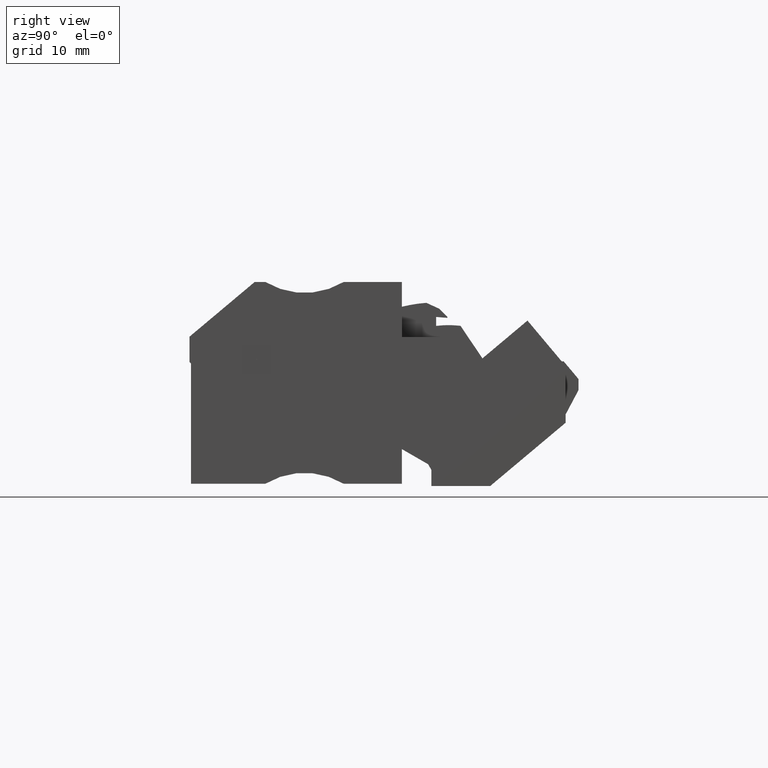
[diagram: clean part render]
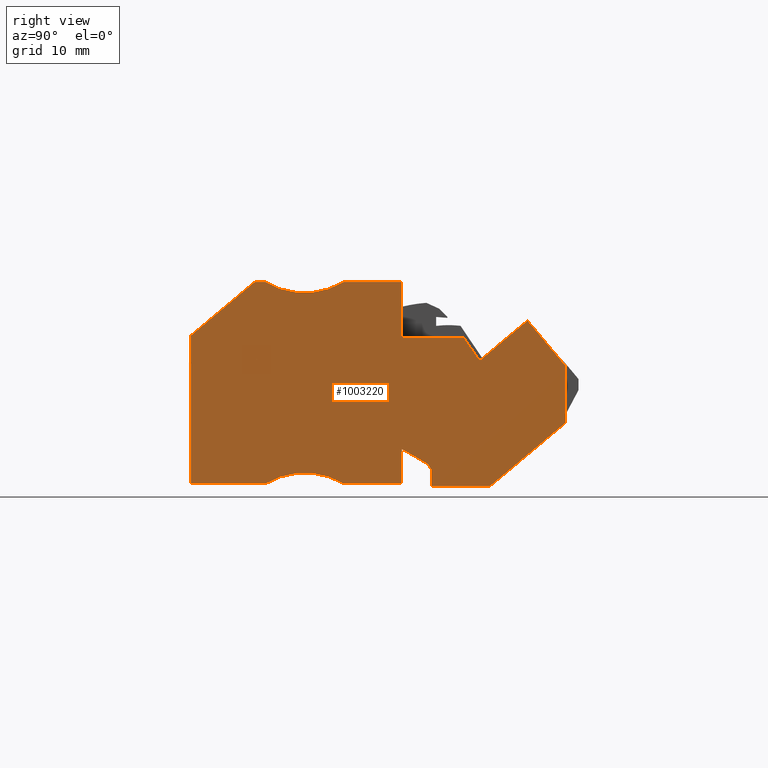
[diagram: same view with one face highlighted and labeled with its STEP entity id]
A machine part, right view. The second image highlights one B-rep face of the part: STEP entity #1003220.
In plain terms, the highlighted planar face has unit normal (1, 0, -0).
Its self-contained STEP definition (entity closure, byte-faithful):
#995880=CARTESIAN_POINT('',(464.820007016821,692.446315880511,
142.719999967517));
#995890=VERTEX_POINT('',#995880);
#995920=CARTESIAN_POINT('',(434.418902605409,666.936760447024,
142.719999983693));
#995930=DIRECTION('',(0.766044443506207,0.642787609225058,
-4.07600241177514E-10));
#995940=VECTOR('',#995930,1.);
#995950=LINE('',#995920,#995940);
#995960=CARTESIAN_POINT('',(458.497798362205,687.141352936688,
142.719999970881));
#995970=VERTEX_POINT('',#995960);
#995980=EDGE_CURVE('',#995970,#995890,#995950,.T.);
#996560=CARTESIAN_POINT('',(469.853158721621,678.98136287091,
142.719999972346));
#996570=VERTEX_POINT('',#996560);
#996600=CARTESIAN_POINT('',(469.853158756478,707.918603594655,
142.719999960065));
#996610=DIRECTION('',(1.20455911911653E-9,1.,-4.24416471219152E-10));
#996620=VECTOR('',#996610,1.);
#996630=LINE('',#996600,#996620);
#996640=CARTESIAN_POINT('',(469.853158730615,686.448039236189,
142.719999969177));
#996650=VERTEX_POINT('',#996640);
#996660=EDGE_CURVE('',#996570,#996650,#996630,.T.);
#996940=CARTESIAN_POINT('',(459.905573296897,670.634347633595,
142.719999977639));
#996950=VERTEX_POINT('',#996940);
#996980=CARTESIAN_POINT('',(447.053267511741,659.849982620081,
142.719999984478));
#996990=DIRECTION('',(-0.766044444016711,-0.642787608616663,
4.07600244682758E-10));
#997000=VECTOR('',#996990,1.);
#997010=LINE('',#996980,#997000);
#997020=EDGE_CURVE('',#996570,#996950,#997010,.T.);
#997250=CARTESIAN_POINT('',(420.453158772378,690.486358078823,
142.719999976156));
#997260=VERTEX_POINT('',#997250);
#997290=CARTESIAN_POINT('',(420.453158765085,686.45009143349,
142.719999977869));
#997300=DIRECTION('',(-1.80696546614432E-9,-1.,4.24416371870361E-10));
#997310=VECTOR('',#997300,1.);
#997320=LINE('',#997290,#997310);
#997330=CARTESIAN_POINT('',(420.453158737048,670.934347681118,
142.719999984454));
#997340=VERTEX_POINT('',#997330);
#997350=EDGE_CURVE('',#997260,#997340,#997320,.T.);
#998020=CARTESIAN_POINT('',(435.668902496427,670.93434766279,
142.719999987122));
#998030=DIRECTION('',(1.,-1.20456572494381E-9,-1.2810032886981E-10));
#998040=VECTOR('',#998030,1.);
#998050=LINE('',#998020,#998040);
#998060=CARTESIAN_POINT('',(430.260883728381,670.934347669304,
142.719999987815));
#998070=VERTEX_POINT('',#998060);
#998080=EDGE_CURVE('',#997340,#998070,#998050,.T.);
#998490=CARTESIAN_POINT('',(435.425728087948,662.371381901449,
142.719999991131));
#998500=DIRECTION('',(1.28100595517667E-10,4.64504649617954E-10,1.));
#998510=DIRECTION('',(0.707106782058739,0.707106780314356,
-4.19035115678159E-10));
#998520=AXIS2_PLACEMENT_3D('',#998490,#998500,#998510);
#998530=CIRCLE('',#998520,10.);
#998540=CARTESIAN_POINT('',(440.590572468117,670.934347656877,
142.719999986492));
#998550=VERTEX_POINT('',#998540);
#998560=EDGE_CURVE('',#998550,#998070,#998530,.T.);
#998760=CARTESIAN_POINT('',(435.968902494408,670.934347662428,
142.719999987084));
#998770=DIRECTION('',(1.,-1.20456572494381E-9,-1.28100291599098E-10));
#998780=VECTOR('',#998770,1.);
#998790=LINE('',#998760,#998780);
#998800=CARTESIAN_POINT('',(448.253158715685,670.934347647631,
142.71999998551));
#998810=VERTEX_POINT('',#998800);
#998820=EDGE_CURVE('',#998550,#998810,#998790,.T.);
#999100=CARTESIAN_POINT('',(448.253158721193,675.507552726589,
142.719999977621));
#999110=VERTEX_POINT('',#999100);
#999160=CARTESIAN_POINT('',(448.253158734216,686.318603625679,
142.719999978364));
#999170=DIRECTION('',(-1.20456361551975E-9,-1.,4.64504820525951E-10));
#999180=VECTOR('',#999170,1.);
#999190=LINE('',#999160,#999180);
#999200=EDGE_CURVE('',#999110,#998810,#999190,.T.);
#999380=CARTESIAN_POINT('',(443.998522782488,677.963967937938,
142.719999977327));
#999390=DIRECTION('',(0.866025403182159,-0.50000000104318,
5.9824925418767E-11));
#999400=VECTOR('',#999390,1.);
#999410=LINE('',#999380,#999400);
#999420=CARTESIAN_POINT('',(451.720146012434,673.505886675146,
142.719999977861));
#999430=VERTEX_POINT('',#999420);
#999440=EDGE_CURVE('',#999110,#999430,#999410,.T.);
#999690=CARTESIAN_POINT('',(66.4180495031961,1340.86869594844,
142.719999762418));
#999700=DIRECTION('',(-0.499999998956815,0.866025404386722,
-2.79576749618894E-10));
#999710=VECTOR('',#999700,1.);
#999720=LINE('',#999690,#999710);
#999730=CARTESIAN_POINT('',(452.153158713577,672.755886674356,
142.719999978103));
#999740=VERTEX_POINT('',#999730);
#999750=EDGE_CURVE('',#999740,#999430,#999720,.T.);
#1000000=CARTESIAN_POINT('',(452.153158729674,686.118603865477,
142.719999972432));
#1000010=DIRECTION('',(1.20456272734136E-9,1.,-4.24416190185318E-10));
#1000020=VECTOR('',#1000010,1.);
#1000030=LINE('',#1000000,#1000020);
#1000040=CARTESIAN_POINT('',(452.153158711022,670.634347642933,
142.719999979003));
#1000050=VERTEX_POINT('',#1000040);
#1000060=EDGE_CURVE('',#1000050,#999740,#1000030,.T.);
#1000310=CARTESIAN_POINT('',(436.268902496048,670.634347662067,
142.719999981798));
#1000320=DIRECTION('',(1.,-1.20456572494383E-9,-1.75956908679912E-10));
#1000330=VECTOR('',#1000320,1.);
#1000340=LINE('',#1000310,#1000330);
#1000350=EDGE_CURVE('',#1000050,#996950,#1000340,.T.);
#1000580=CARTESIAN_POINT('',(428.852625741102,697.534347685232,
142.719999971687));
#1000590=VERTEX_POINT('',#1000580);
#1000640=CARTESIAN_POINT('',(418.258461668911,688.644788563214,
142.719999977324));
#1000650=DIRECTION('',(0.766044444670996,0.642787607836916,
-4.07600435471174E-10));
#1000660=VECTOR('',#1000650,1.);
#1000670=LINE('',#1000640,#1000660);
#1000680=EDGE_CURVE('',#997260,#1000590,#1000670,.T.);
#1001230=CARTESIAN_POINT('',(430.260883736419,697.534347683416,
142.719999975459));
#1001240=VERTEX_POINT('',#1001230);
#1001270=CARTESIAN_POINT('',(459.468902537447,697.534347648352,
142.719999966299));
#1001280=DIRECTION('',(1.,-1.20456350449778E-9,-1.7595690306274E-10));
#1001290=VECTOR('',#1001280,1.);
#1001300=LINE('',#1001270,#1001290);
#1001310=EDGE_CURVE('',#1000590,#1001240,#1001300,.T.);
#1001550=CARTESIAN_POINT('',(440.59057249813,697.534347657088,
142.719999974136));
#1001560=VERTEX_POINT('',#1001550);
#1001590=CARTESIAN_POINT('',(435.425728139103,706.097313425264,
142.71999997082));
#1001600=DIRECTION('',(1.28100595517667E-10,4.64504649617954E-10,1.));
#1001610=DIRECTION('',(0.707106782058739,0.707106780314356,
-4.19035115678159E-10));
#1001620=AXIS2_PLACEMENT_3D('',#1001590,#1001600,#1001610);
#1001630=CIRCLE('',#1001620,10.);
#1001640=EDGE_CURVE('',#1001240,#1001560,#1001630,.T.);
#1001850=CARTESIAN_POINT('',(448.253158747726,697.534347647858,
142.719999973155));
#1001860=VERTEX_POINT('',#1001850);
#1001890=CARTESIAN_POINT('',(409.368902529001,697.534347694697,
142.719999978155));
#1001900=DIRECTION('',(-1.,1.20456378205352E-9,1.28100328869811E-10));
#1001910=VECTOR('',#1001900,1.);
#1001920=LINE('',#1001890,#1001910);
#1001930=EDGE_CURVE('',#1001860,#1001560,#1001920,.T.);
#1002160=CARTESIAN_POINT('',(448.253158738933,690.23434764793,
142.719999976546));
#1002170=VERTEX_POINT('',#1002160);
#1002200=EDGE_CURVE('',#1001860,#1002170,#999190,.T.);
#1002460=CARTESIAN_POINT('',(456.41154709591,690.234347638102,
142.719999969936));
#1002470=VERTEX_POINT('',#1002460);
#1002500=CARTESIAN_POINT('',(412.568902754562,690.234347690914,
142.71999997765));
#1002510=DIRECTION('',(-1.,1.20456478125426E-9,1.75956911828149E-10));
#1002520=VECTOR('',#1002510,1.);
#1002530=LINE('',#1002500,#1002520);
#1002540=EDGE_CURVE('',#1002470,#1002170,#1002530,.T.);
#1002710=CARTESIAN_POINT('',(471.149558079163,668.384347741439,
142.719999976616));
#1002720=DIRECTION('',(0.559192902426276,-0.829037573259547,
2.53463132922706E-10));
#1002730=VECTOR('',#1002720,1.);
#1002740=LINE('',#1002710,#1002730);
#1002750=EDGE_CURVE('',#1002470,#995970,#1002740,.T.);
#1002900=CARTESIAN_POINT('',(434.418902618229,672.484347543258,
142.719999981339));
#1002910=DIRECTION('',(1.75956914421888E-10,4.2441642785003E-10,1.));
#1002920=DIRECTION('',(0.707106780334796,-0.707106782038299,
1.75687407306717E-10));
#1002930=AXIS2_PLACEMENT_3D('',#1002900,#1002910,#1002920);
#1002940=PLANE('',#1002930);
#1002950=ORIENTED_EDGE('',*,*,#999200,.F.);
#1002960=ORIENTED_EDGE('',*,*,#998820,.T.);
#1002970=ORIENTED_EDGE('',*,*,#998560,.F.);
#1002980=ORIENTED_EDGE('',*,*,#998080,.T.);
#1002990=ORIENTED_EDGE('',*,*,#997350,.T.);
#1003000=ORIENTED_EDGE('',*,*,#1000680,.F.);
#1003010=ORIENTED_EDGE('',*,*,#1001310,.F.);
#1003020=ORIENTED_EDGE('',*,*,#1001640,.F.);
#1003030=ORIENTED_EDGE('',*,*,#1001930,.T.);
#1003040=ORIENTED_EDGE('',*,*,#1002200,.F.);
#1003050=ORIENTED_EDGE('',*,*,#1002540,.T.);
#1003060=ORIENTED_EDGE('',*,*,#1002750,.F.);
#1003070=ORIENTED_EDGE('',*,*,#995980,.F.);
#1003080=CARTESIAN_POINT('',(460.057092049106,698.12253691145,
142.719999965946));
#1003090=DIRECTION('',(-0.642787609225153,0.766044443506127,
-2.12018918733443E-10));
#1003100=VECTOR('',#1003090,1.);
#1003110=LINE('',#1003080,#1003100);
#1003120=EDGE_CURVE('',#996650,#995890,#1003110,.T.);
#1003130=ORIENTED_EDGE('',*,*,#1003120,.T.);
#1003140=ORIENTED_EDGE('',*,*,#996660,.T.);
#1003150=ORIENTED_EDGE('',*,*,#997020,.F.);
#1003160=ORIENTED_EDGE('',*,*,#1000350,.T.);
#1003170=ORIENTED_EDGE('',*,*,#1000060,.F.);
#1003180=ORIENTED_EDGE('',*,*,#999750,.F.);
#1003190=ORIENTED_EDGE('',*,*,#999440,.T.);
#1003200=EDGE_LOOP('',(#1003190,#1003180,#1003170,#1003160,#1003150,
#1003140,#1003130,#1003070,#1003060,#1003050,#1003040,#1003030,#1003020,
#1003010,#1003000,#1002990,#1002980,#1002970,#1002960,#1002950));
#1003210=FACE_OUTER_BOUND('',#1003200,.T.);
#1003220=ADVANCED_FACE('',(#1003210),#1002940,.T.);